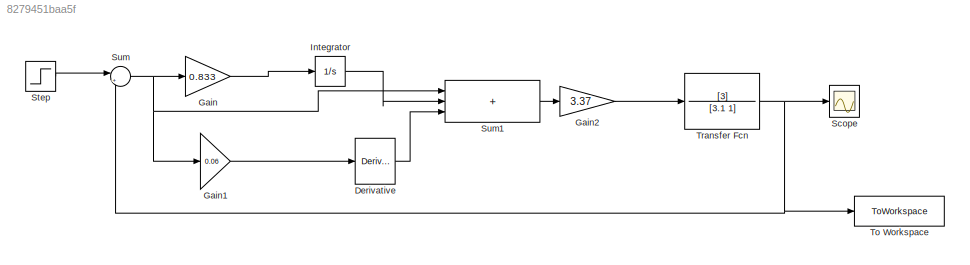
MODEL slx_8279451baa5f
KIND model
CONFIG AbsTol = auto
CONFIG EnableMultiTasking = off
CONFIG FixedStep = auto
CONFIG MaxStep = auto
CONFIG MinStep = auto
CONFIG RelTol = 1e-3
CONFIG SampleTimeConstraint = Unconstrained
CONFIG SolverName = VariableStepAuto
CONFIG StartTime = 0.0
CONFIG StopTime = 10.0
BLOCK [Derivative] Derivative
BLOCK [Gain] Gain
  Gain = 0.833
  NameLocation = top
BLOCK [Gain] Gain1
  Gain = 0.06
BLOCK [Gain] Gain2
  Gain = 3.37
BLOCK [Integrator] Integrator
  NameLocation = top
  Ports = [1, 1]
BLOCK [Scope] Scope
  Floating = off
  NumInputPorts = 1
  Ports = [1]
  ScopeSpecificationString = Simulink.scopes.TimeScopeBlockCfg('CurrentConfiguration', extmgr.ConfigurationSet(extmgr.Configuration('Core','General UI',true,'ShowMainToolbar',false,'ShowStatusbar',false),extmgr.Configuration('Core','Source UI',true),extmgr.Configuration('Sources','WiredSimulink',true),extmgr.Configuration('Visuals','Time Domain',true,'SerializedDisplays',{struct('MinYLimReal','-4.09028','MaxYLimReal','36.8125...<+1450ch>
BLOCK [Step] Step
  After = 30
  SampleTime = 0
  Time = 0
BLOCK [Sum] Sum
  Inputs = |+-
  NameLocation = top
  Ports = [2, 1]
BLOCK [Sum] Sum1
  IconShape = rectangular
  Inputs = |+++
  NameLocation = top
  Ports = [3, 1]
BLOCK [ToWorkspace] To Workspace
  FixptAsFi = on
  MaxDataPoints = inf
  Ports = [1]
  SampleTime = -1
  SaveFormat = Timeseries
  VariableName = smout
BLOCK [TransferFcn] Transfer Fcn
  Denominator = [3.1 1]
  Numerator = [3]
LINE Derivative:1 -> Sum1:3
LINE Gain1:1 -> Derivative:1
LINE Gain2:1 -> Transfer Fcn:1
LINE Gain:1 -> Integrator:1
LINE Integrator:1 -> Sum1:2
LINE Step:1 -> Sum:1
LINE Sum1:1 -> Gain2:1
NET Sum:1 -> Gain1:1, Gain:1, Sum1:1
NET Transfer Fcn:1 -> Scope:1, Sum:2, To Workspace:1
note: NET lines group one-source signal fan-out (src -> all destinations, sorted); 1:1 wires keep LINE
